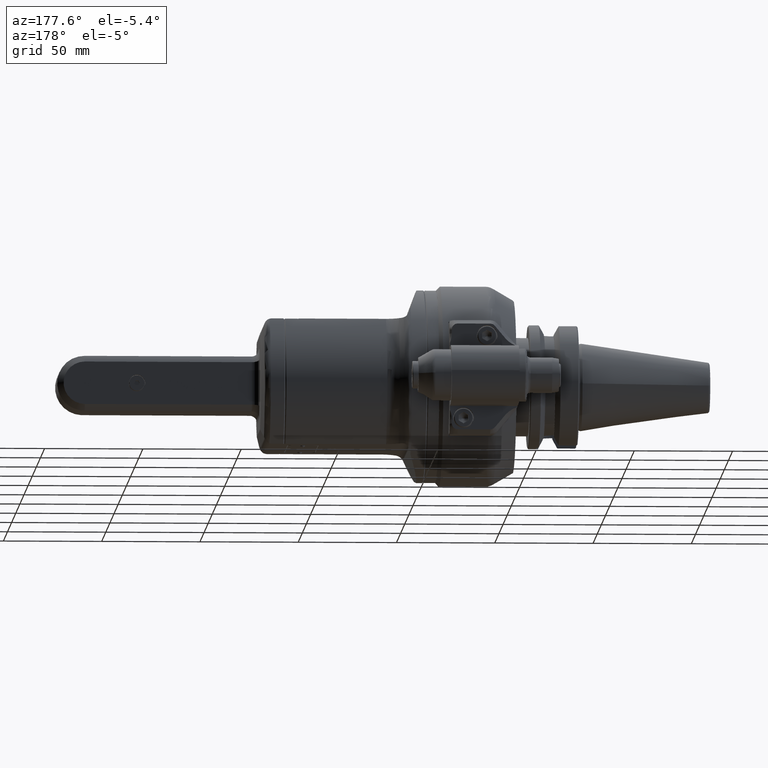
[diagram: clean part render]
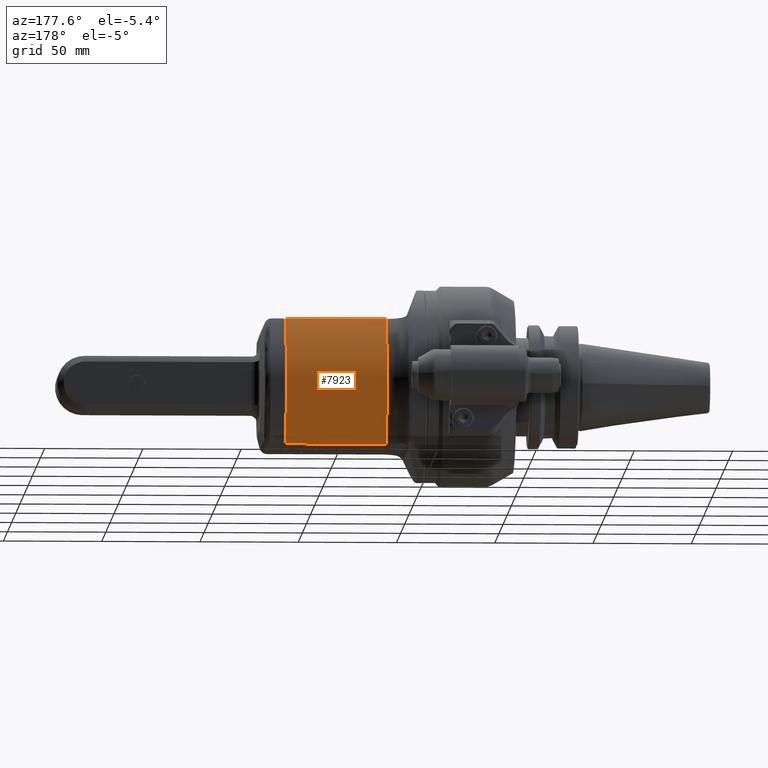
[diagram: same view with one face highlighted and labeled with its STEP entity id]
A machine part, auxiliary view. The second image highlights one B-rep face of the part: STEP entity #7923.
In plain terms, the highlighted cylindrical surface (partial cylindrical patch) has radius 42.5 mm, axis along (1, 0, -0).
Its self-contained STEP definition (entity closure, byte-faithful):
#621=FACE_OUTER_BOUND('',#1115,.T.);
#1115=EDGE_LOOP('',(#5506,#5507,#5508,#5509,#5510,#5511,#5512));
#1781=LINE('',#11821,#2361);
#1792=LINE('',#11879,#2372);
#1796=LINE('',#11891,#2376);
#2361=VECTOR('',#9352,51.26935071414);
#2372=VECTOR('',#9391,6.3);
#2376=VECTOR('',#9405,44.46935112619);
#2949=CIRCLE('',#8474,51.9372405814551);
#2950=CIRCLE('',#8476,51.8413641367197);
#2971=CIRCLE('',#8519,42.5);
#2972=CIRCLE('',#8521,42.5);
#3323=VERTEX_POINT('',#11807);
#3324=VERTEX_POINT('',#11820);
#3346=VERTEX_POINT('',#11872);
#3347=VERTEX_POINT('',#11878);
#3348=VERTEX_POINT('',#11882);
#3349=VERTEX_POINT('',#11886);
#3350=VERTEX_POINT('',#11890);
#4129=EDGE_CURVE('',#3324,#3323,#1781,.T.);
#4154=EDGE_CURVE('',#3347,#3346,#1792,.T.);
#4156=EDGE_CURVE('',#3347,#3348,#2949,.T.);
#4158=EDGE_CURVE('',#3348,#3349,#2950,.T.);
#4160=EDGE_CURVE('',#3350,#3349,#1796,.T.);
#4212=EDGE_CURVE('',#3350,#3323,#2971,.T.);
#4213=EDGE_CURVE('',#3324,#3346,#2972,.T.);
#5506=ORIENTED_EDGE('',*,*,#4154,.T.);
#5507=ORIENTED_EDGE('',*,*,#4213,.F.);
#5508=ORIENTED_EDGE('',*,*,#4129,.T.);
#5509=ORIENTED_EDGE('',*,*,#4212,.F.);
#5510=ORIENTED_EDGE('',*,*,#4160,.T.);
#5511=ORIENTED_EDGE('',*,*,#4158,.F.);
#5512=ORIENTED_EDGE('',*,*,#4156,.F.);
#7773=CYLINDRICAL_SURFACE('',#8520,42.5);
#7923=ADVANCED_FACE('',(#621),#7773,.T.);
#8474=AXIS2_PLACEMENT_3D('',#11883,#9395,#9396);
#8476=AXIS2_PLACEMENT_3D('',#11887,#9400,#9401);
#8519=AXIS2_PLACEMENT_3D('',#12102,#9501,#9502);
#8520=AXIS2_PLACEMENT_3D('',#12103,#9503,#9504);
#8521=AXIS2_PLACEMENT_3D('',#12104,#9505,#9506);
#9352=DIRECTION('',(-1.,3.473462719081E-9,3.035885849564E-9));
#9391=DIRECTION('',(1.,0.,0.));
#9395=DIRECTION('center_axis',(-0.707105409769089,2.43193874876257E-6,0.707108152597164));
#9396=DIRECTION('ref_axis',(0.438957816045711,0.783987202337152,0.438953417009078));
#9400=DIRECTION('center_axis',(0.707103671021956,5.49545211017132E-6,0.707109891316105));
#9401=DIRECTION('ref_axis',(-0.444744495889397,0.77744036488246,0.444734541527318));
#9405=DIRECTION('',(1.,0.,0.));
#9501=DIRECTION('center_axis',(-1.,0.,0.));
#9502=DIRECTION('ref_axis',(0.,0.658087824515174,0.75294117647057));
#9503=DIRECTION('center_axis',(1.,0.,0.));
#9504=DIRECTION('ref_axis',(0.,1.,-3.61237605350076E-9));
#9505=DIRECTION('center_axis',(1.,0.,0.));
#9506=DIRECTION('ref_axis',(0.,0.658087824515174,-0.75294117647057));
#11807=CARTESIAN_POINT('',(17.23064887381,27.96873254189,-32.));
#11820=CARTESIAN_POINT('',(68.499999958775,27.9687323282249,-32.0000002221204));
#11821=CARTESIAN_POINT('',(68.49999958795,27.96873236381,-32.00000015565));
#11872=CARTESIAN_POINT('',(68.5,28.08273490955,31.9));
#11878=CARTESIAN_POINT('',(62.2,28.08273490955,31.9));
#11879=CARTESIAN_POINT('',(62.2,28.08273490955,31.9));
#11882=CARTESIAN_POINT('',(62.,28.30830266901,31.7));
#11883=CARTESIAN_POINT('Origin',(39.2017423029238,-12.4098292715587,8.90197077674531));
#11886=CARTESIAN_POINT('',(61.7,27.96873254189,32.));
#11887=CARTESIAN_POINT('Origin',(84.756161359204,-12.3348365085641,8.94435468850721));
#11890=CARTESIAN_POINT('',(17.23064887381,27.96873254189,32.));
#11891=CARTESIAN_POINT('',(17.23064887381,27.96873254189,32.));
#12102=CARTESIAN_POINT('Origin',(17.23064887381,0.,0.));
#12103=CARTESIAN_POINT('Origin',(22.25229287192,0.,0.));
#12104=CARTESIAN_POINT('Origin',(68.5,0.,0.));